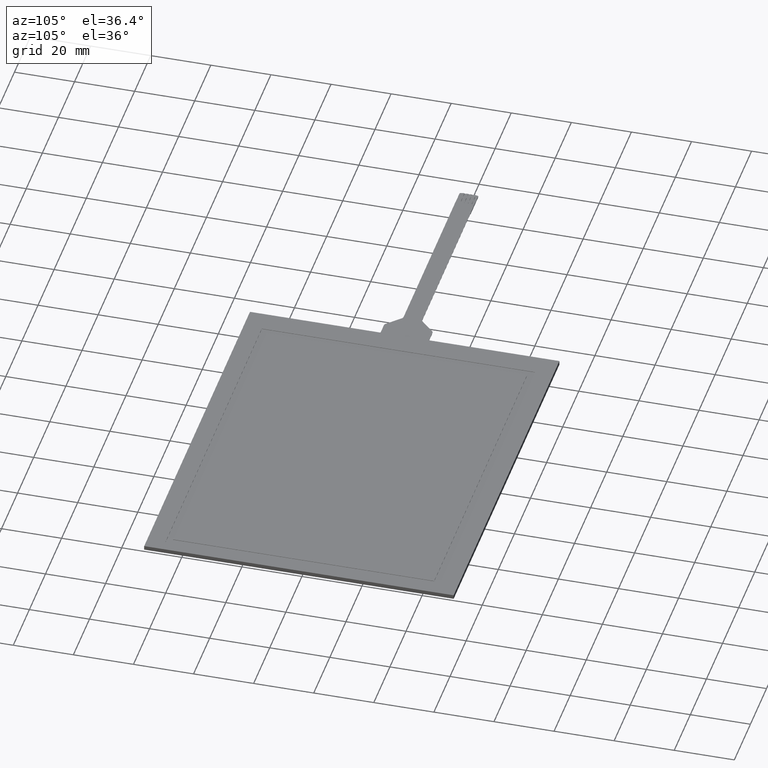
[diagram: clean part render]
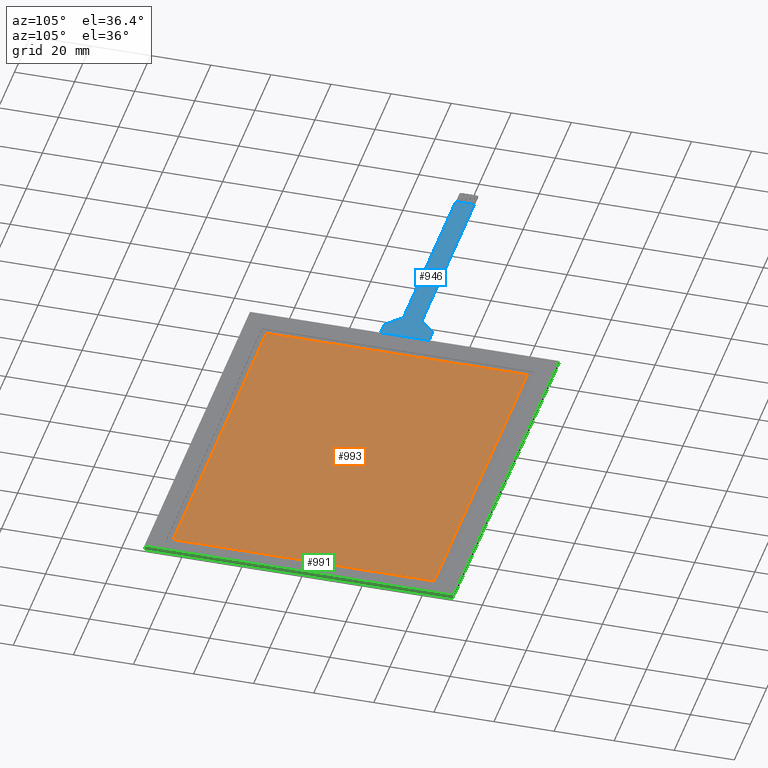
[diagram: same view with three faces highlighted in distinct colors, each labeled with its STEP entity id]
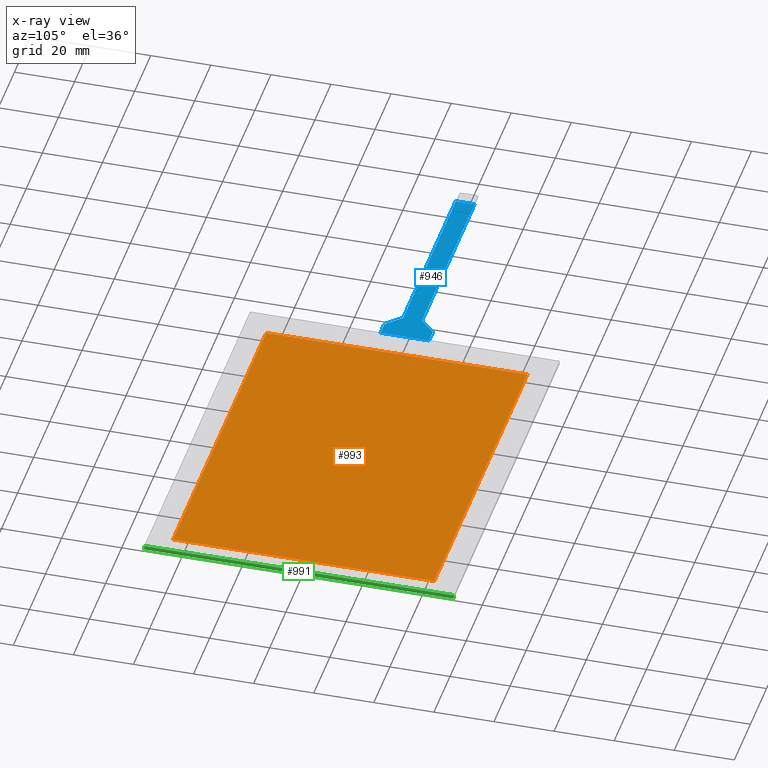
[diagram: x-ray of the same camera — body ghosted, the three highlighted faces saturated]
A machine part, auxiliary view with three faces highlighted in distinct colors.
The next image is the same camera in x-ray (body ghosted, the three faces saturated) — at least one of them is partly hidden behind the body in this view.
Their STEP definitions:

[orange] entity #993 — the highlighted planar face has unit normal (0, 0, 1).
#61=PLANE('',#1076);
#112=FACE_OUTER_BOUND('',#166,.T.);
#166=EDGE_LOOP('',(#930,#931,#932,#933));
#258=LINE('',#1541,#384);
#262=LINE('',#1549,#388);
#265=LINE('',#1555,#391);
#268=LINE('',#1560,#394);
#384=VECTOR('',#1266,10.);
#388=VECTOR('',#1272,10.);
#391=VECTOR('',#1277,10.);
#394=VECTOR('',#1282,10.);
#500=VERTEX_POINT('',#1539);
#501=VERTEX_POINT('',#1540);
#504=VERTEX_POINT('',#1548);
#506=VERTEX_POINT('',#1554);
#626=EDGE_CURVE('',#500,#501,#258,.T.);
#630=EDGE_CURVE('',#504,#500,#262,.T.);
#633=EDGE_CURVE('',#506,#504,#265,.T.);
#636=EDGE_CURVE('',#501,#506,#268,.T.);
#930=ORIENTED_EDGE('',*,*,#626,.T.);
#931=ORIENTED_EDGE('',*,*,#636,.T.);
#932=ORIENTED_EDGE('',*,*,#633,.T.);
#933=ORIENTED_EDGE('',*,*,#630,.T.);
#993=ADVANCED_FACE('',(#112),#61,.T.);
#1076=AXIS2_PLACEMENT_3D('',#1612,#1328,#1329);
#1266=DIRECTION('',(1.,0.,0.));
#1272=DIRECTION('',(0.,-1.,0.));
#1277=DIRECTION('',(-1.,0.,0.));
#1282=DIRECTION('',(0.,1.,0.));
#1328=DIRECTION('center_axis',(0.,0.,1.));
#1329=DIRECTION('ref_axis',(1.,0.,0.));
#1539=CARTESIAN_POINT('',(-57.85,-43.45,0.));
#1540=CARTESIAN_POINT('',(57.85,-43.45,0.));
#1541=CARTESIAN_POINT('',(-29.925,-43.45,0.));
#1548=CARTESIAN_POINT('',(-57.85,43.45,0.));
#1549=CARTESIAN_POINT('',(-57.85,21.725,0.));
#1554=CARTESIAN_POINT('',(57.85,43.45,0.));
#1555=CARTESIAN_POINT('',(27.925,43.45,0.));
#1560=CARTESIAN_POINT('',(57.85,-21.725,0.));
#1612=CARTESIAN_POINT('Origin',(-2.00000000000001,0.,0.));

[blue] entity #946 — the highlighted planar face has unit normal (0, 0, 1).
#19=PLANE('',#1019);
#65=FACE_OUTER_BOUND('',#116,.T.);
#116=EDGE_LOOP('',(#670,#671,#672,#673,#674,#675,#676,#677,#678,#679,#680,
#681));
#170=LINE('',#1344,#296);
#173=LINE('',#1350,#299);
#174=LINE('',#1354,#300);
#175=LINE('',#1356,#301);
#176=LINE('',#1358,#302);
#177=LINE('',#1362,#303);
#178=LINE('',#1366,#304);
#179=LINE('',#1367,#305);
#296=VECTOR('',#1090,10.);
#299=VECTOR('',#1095,10.);
#300=VECTOR('',#1098,10.);
#301=VECTOR('',#1099,10.);
#302=VECTOR('',#1100,10.);
#303=VECTOR('',#1103,10.);
#304=VECTOR('',#1106,10.);
#305=VECTOR('',#1107,10.);
#420=CIRCLE('',#1016,1.);
#422=CIRCLE('',#1020,1.);
#423=CIRCLE('',#1021,1.);
#424=CIRCLE('',#1022,1.);
#432=VERTEX_POINT('',#1334);
#433=VERTEX_POINT('',#1335);
#436=VERTEX_POINT('',#1343);
#438=VERTEX_POINT('',#1349);
#439=VERTEX_POINT('',#1351);
#440=VERTEX_POINT('',#1353);
#441=VERTEX_POINT('',#1355);
#442=VERTEX_POINT('',#1357);
#443=VERTEX_POINT('',#1359);
#444=VERTEX_POINT('',#1361);
#445=VERTEX_POINT('',#1363);
#446=VERTEX_POINT('',#1365);
#524=EDGE_CURVE('',#432,#433,#420,.T.);
#528=EDGE_CURVE('',#436,#433,#170,.T.);
#531=EDGE_CURVE('',#432,#438,#173,.T.);
#532=EDGE_CURVE('',#439,#438,#422,.T.);
#533=EDGE_CURVE('',#439,#440,#174,.T.);
#534=EDGE_CURVE('',#440,#441,#175,.T.);
#535=EDGE_CURVE('',#441,#442,#176,.T.);
#536=EDGE_CURVE('',#443,#442,#423,.T.);
#537=EDGE_CURVE('',#443,#444,#177,.T.);
#538=EDGE_CURVE('',#445,#444,#424,.T.);
#539=EDGE_CURVE('',#445,#446,#178,.T.);
#540=EDGE_CURVE('',#436,#446,#179,.T.);
#670=ORIENTED_EDGE('',*,*,#524,.F.);
#671=ORIENTED_EDGE('',*,*,#531,.T.);
#672=ORIENTED_EDGE('',*,*,#532,.F.);
#673=ORIENTED_EDGE('',*,*,#533,.T.);
#674=ORIENTED_EDGE('',*,*,#534,.T.);
#675=ORIENTED_EDGE('',*,*,#535,.T.);
#676=ORIENTED_EDGE('',*,*,#536,.F.);
#677=ORIENTED_EDGE('',*,*,#537,.T.);
#678=ORIENTED_EDGE('',*,*,#538,.F.);
#679=ORIENTED_EDGE('',*,*,#539,.T.);
#680=ORIENTED_EDGE('',*,*,#540,.F.);
#681=ORIENTED_EDGE('',*,*,#528,.T.);
#946=ADVANCED_FACE('',(#65),#19,.T.);
#1016=AXIS2_PLACEMENT_3D('',#1336,#1082,#1083);
#1019=AXIS2_PLACEMENT_3D('',#1348,#1093,#1094);
#1020=AXIS2_PLACEMENT_3D('',#1352,#1096,#1097);
#1021=AXIS2_PLACEMENT_3D('',#1360,#1101,#1102);
#1022=AXIS2_PLACEMENT_3D('',#1364,#1104,#1105);
#1082=DIRECTION('center_axis',(0.,0.,-1.));
#1083=DIRECTION('ref_axis',(-0.38268343236509,0.923879532511287,0.));
#1090=DIRECTION('',(-1.,-2.32751158202339E-16,0.));
#1093=DIRECTION('center_axis',(0.,0.,1.));
#1094=DIRECTION('ref_axis',(1.,0.,0.));
#1095=DIRECTION('',(-0.707106781186547,-0.707106781186548,0.));
#1096=DIRECTION('center_axis',(0.,0.,1.));
#1097=DIRECTION('ref_axis',(0.38268343236509,-0.923879532511287,0.));
#1098=DIRECTION('',(-1.,-1.18495413187543E-16,0.));
#1099=DIRECTION('',(0.,-1.,0.));
#1100=DIRECTION('',(1.,5.29279512237694E-16,0.));
#1101=DIRECTION('center_axis',(0.,0.,1.));
#1102=DIRECTION('ref_axis',(0.38268343236509,0.923879532511287,0.));
#1103=DIRECTION('',(0.707106781186546,-0.707106781186549,0.));
#1104=DIRECTION('center_axis',(0.,0.,-1.));
#1105=DIRECTION('ref_axis',(-0.38268343236509,-0.923879532511287,0.));
#1106=DIRECTION('',(1.,0.,0.));
#1107=DIRECTION('',(1.72461829067985E-16,-1.,0.));
#1334=CARTESIAN_POINT('',(-72.7628932188135,7.81710678118653,-0.088));
#1335=CARTESIAN_POINT('',(-72.0557864376269,8.10999999999998,-0.088));
#1336=CARTESIAN_POINT('Origin',(-72.0557864376269,7.10999999999998,-0.088));
#1343=CARTESIAN_POINT('',(-67.7,8.10999999999998,-0.088));
#1344=CARTESIAN_POINT('',(-67.7,8.10999999999998,-0.088));
#1348=CARTESIAN_POINT('Origin',(-107.7,0.0249999999999806,-0.088));
#1349=CARTESIAN_POINT('',(-77.1371067811866,3.44289321881343,-0.088));
#1350=CARTESIAN_POINT('',(-72.47,8.10999999999998,-0.088));
#1351=CARTESIAN_POINT('',(-77.8442135623731,3.14999999999998,-0.088));
#1352=CARTESIAN_POINT('Origin',(-77.8442135623731,4.14999999999997,-0.088));
#1353=CARTESIAN_POINT('',(-142.7,3.14999999999997,-0.088));
#1354=CARTESIAN_POINT('',(-77.43,3.14999999999998,-0.088));
#1355=CARTESIAN_POINT('',(-142.7,-3.10000000000003,-0.088));
#1356=CARTESIAN_POINT('',(-142.7,1.58749999999997,-0.088));
#1357=CARTESIAN_POINT('',(-77.8442135623731,-3.1,-0.088));
#1358=CARTESIAN_POINT('',(-147.7,-3.10000000000003,-0.088));
#1359=CARTESIAN_POINT('',(-77.1371067811866,-3.39289321881346,-0.088));
#1360=CARTESIAN_POINT('Origin',(-77.8442135623731,-4.1,-0.088));
#1361=CARTESIAN_POINT('',(-72.7628932188135,-7.76710678118657,-0.088));
#1362=CARTESIAN_POINT('',(-77.43,-3.1,-0.088));
#1363=CARTESIAN_POINT('',(-72.0557864376269,-8.06000000000002,-0.088));
#1364=CARTESIAN_POINT('Origin',(-72.0557864376269,-7.06000000000002,-0.088));
#1365=CARTESIAN_POINT('',(-67.7,-8.06000000000002,-0.088));
#1366=CARTESIAN_POINT('',(-72.47,-8.06000000000002,-0.088));
#1367=CARTESIAN_POINT('',(-67.7,-25.7375,-0.088));

[green] entity #991 — the highlighted planar face has unit normal (1, 0, 0).
#59=PLANE('',#1074);
#110=FACE_OUTER_BOUND('',#164,.T.);
#164=EDGE_LOOP('',(#922,#923,#924,#925));
#285=LINE('',#1595,#411);
#290=LINE('',#1605,#416);
#291=LINE('',#1608,#417);
#292=LINE('',#1609,#418);
#411=VECTOR('',#1311,10.);
#416=VECTOR('',#1320,10.);
#417=VECTOR('',#1323,10.);
#418=VECTOR('',#1324,10.);
#516=VERTEX_POINT('',#1588);
#519=VERTEX_POINT('',#1593);
#522=VERTEX_POINT('',#1603);
#523=VERTEX_POINT('',#1607);
#653=EDGE_CURVE('',#519,#516,#285,.T.);
#658=EDGE_CURVE('',#519,#522,#290,.T.);
#659=EDGE_CURVE('',#523,#522,#291,.T.);
#660=EDGE_CURVE('',#516,#523,#292,.T.);
#922=ORIENTED_EDGE('',*,*,#653,.F.);
#923=ORIENTED_EDGE('',*,*,#658,.T.);
#924=ORIENTED_EDGE('',*,*,#659,.F.);
#925=ORIENTED_EDGE('',*,*,#660,.F.);
#991=ADVANCED_FACE('',(#110),#59,.T.);
#1074=AXIS2_PLACEMENT_3D('',#1606,#1321,#1322);
#1311=DIRECTION('',(-8.62309145339927E-17,1.,0.));
#1320=DIRECTION('',(0.,0.,-1.));
#1321=DIRECTION('center_axis',(1.,8.62309145339927E-17,0.));
#1322=DIRECTION('ref_axis',(8.62309145339927E-17,-1.,0.));
#1323=DIRECTION('',(8.62309145339927E-17,-1.,0.));
#1324=DIRECTION('',(0.,0.,-1.));
#1588=CARTESIAN_POINT('',(63.7,51.5,0.));
#1593=CARTESIAN_POINT('',(63.7,-51.5,0.));
#1595=CARTESIAN_POINT('',(63.7,-51.5,0.));
#1603=CARTESIAN_POINT('',(63.7,-51.5,-1.4));
#1605=CARTESIAN_POINT('',(63.7,-51.5,0.));
#1606=CARTESIAN_POINT('Origin',(63.7,51.5,0.));
#1607=CARTESIAN_POINT('',(63.7,51.5,-1.4));
#1608=CARTESIAN_POINT('',(63.7,-51.5,-1.4));
#1609=CARTESIAN_POINT('',(63.7,51.5,0.));